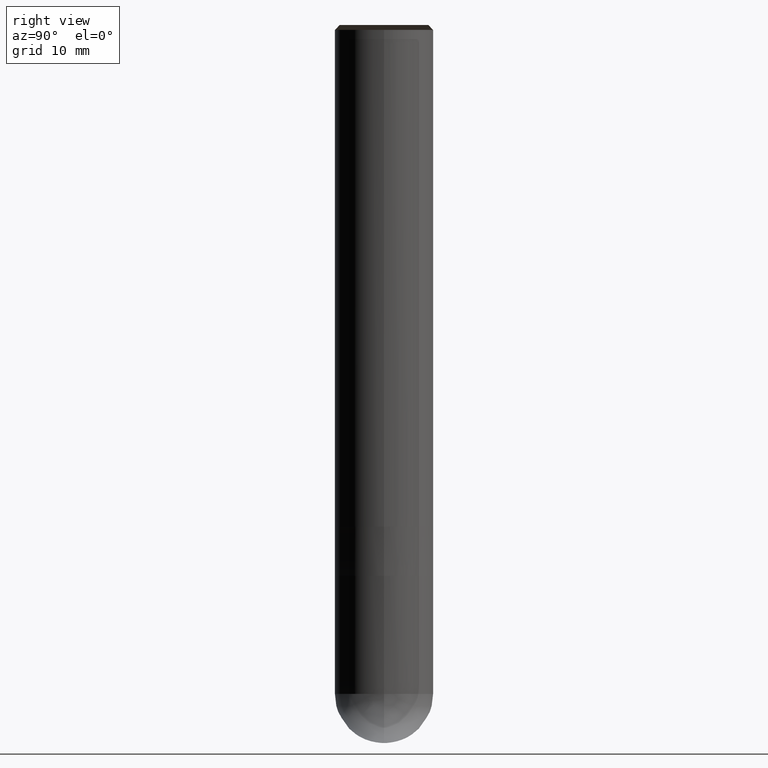
[diagram: clean part render]
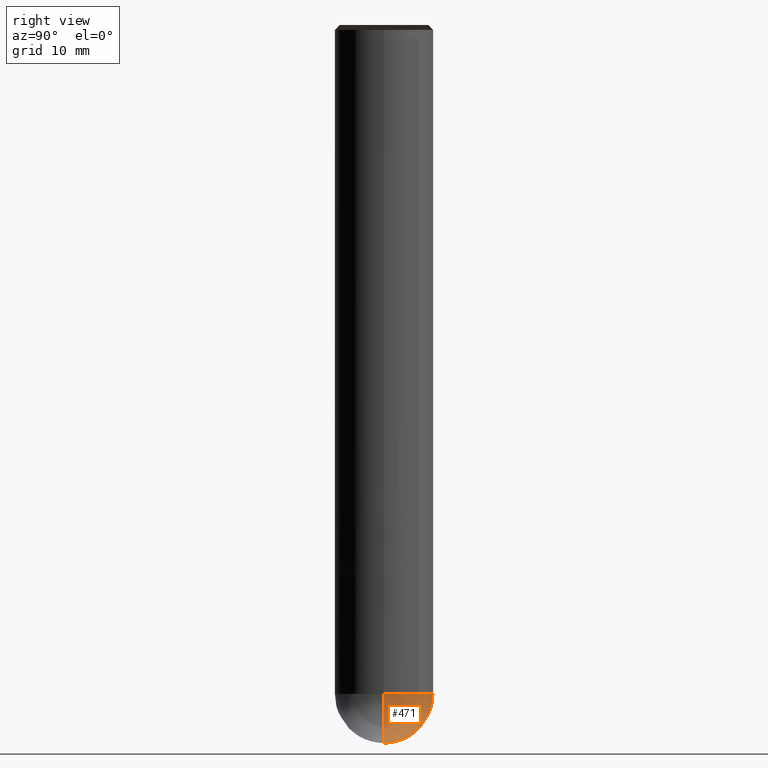
[diagram: same view with one face highlighted and labeled with its STEP entity id]
A machine part, right view. The second image highlights one B-rep face of the part: STEP entity #471.
In plain terms, the highlighted face is a freeform B-spline surface patch.
Its self-contained STEP definition (entity closure, byte-faithful):
#400=CARTESIAN_POINT('',(0.0,0.0,-22.0));
#401=CARTESIAN_POINT('',(5.0,0.0,-22.0));
#402=CARTESIAN_POINT('',(5.0,5.0,-22.0));
#403=CARTESIAN_POINT('',(0.0,5.0,-22.0));
#404=CARTESIAN_POINT('',(-5.0,5.0,-22.0));
#405=CARTESIAN_POINT('',(-5.0,0.0,-22.0));
#406=CARTESIAN_POINT('',(5.0,0.0,-17.0));
#407=CARTESIAN_POINT('',(5.0,5.0,-17.0));
#408=CARTESIAN_POINT('',(0.0,5.0,-17.0));
#409=CARTESIAN_POINT('',(-5.0,5.0,-17.0));
#410=CARTESIAN_POINT('',(-5.0,0.0,-17.0));
#456=(
BOUNDED_SURFACE()
B_SPLINE_SURFACE(2,2,(
(#400,#400,#400,#400,#400),
(#401,#402,#403,#404,#405),
(#406,#407,#408,#409,#410)
), .UNSPECIFIED.,.F.,.F.,.F.)
B_SPLINE_SURFACE_WITH_KNOTS((3,3),(3,2,3),(
0.0,1.0),(
0.0,0.5,1.0), .UNSPECIFIED.)
GEOMETRIC_REPRESENTATION_ITEM()
RATIONAL_B_SPLINE_SURFACE(((1.0,0.707106781187,1.0,0.707106781187,1.0),
(0.707106781187,0.5,0.707106781187,0.5,0.707106781187),
(1.0,0.707106781187,1.0,0.707106781187,1.0)
))
REPRESENTATION_ITEM('')
SURFACE()
);
#457=(
BOUNDED_CURVE()
B_SPLINE_CURVE(2,(#410,#405,#400),.UNSPECIFIED.,.F.,.F.)
B_SPLINE_CURVE_WITH_KNOTS((3,3),
(0.0,1.0),.UNSPECIFIED.)
CURVE()
GEOMETRIC_REPRESENTATION_ITEM()
RATIONAL_B_SPLINE_CURVE((1.0,0.707106781187,1.0))
REPRESENTATION_ITEM('')
);
#458=(
BOUNDED_CURVE()
B_SPLINE_CURVE(2,(#400,#401,#406),.UNSPECIFIED.,.F.,.F.)
B_SPLINE_CURVE_WITH_KNOTS((3,3),
(0.0,1.0),.UNSPECIFIED.)
CURVE()
GEOMETRIC_REPRESENTATION_ITEM()
RATIONAL_B_SPLINE_CURVE((1.0,0.707106781187,1.0))
REPRESENTATION_ITEM('')
);
#459=(
BOUNDED_CURVE()
B_SPLINE_CURVE(2,(#406,#407,#408,#409,#410),.UNSPECIFIED.,.F.,.F.)
B_SPLINE_CURVE_WITH_KNOTS((3,2,3),
(0.0,0.5,1.0),.UNSPECIFIED.)
CURVE()
GEOMETRIC_REPRESENTATION_ITEM()
RATIONAL_B_SPLINE_CURVE((1.0,0.707106781187,1.0,0.707106781187,1.0))
REPRESENTATION_ITEM('')
);
#460=VERTEX_POINT('',#400);
#461=VERTEX_POINT('',#406);
#462=VERTEX_POINT('',#410);
#463=EDGE_CURVE('',#462,#460,#457,.T.);
#464=EDGE_CURVE('',#460,#461,#458,.T.);
#465=EDGE_CURVE('',#461,#462,#459,.T.);
#466=ORIENTED_EDGE('',*,*,#463,.T.);
#467=ORIENTED_EDGE('',*,*,#464,.T.);
#468=ORIENTED_EDGE('',*,*,#465,.T.);
#469=EDGE_LOOP('',(#466,#467,#468));
#470=FACE_OUTER_BOUND('',#469,.T.);
#471=ADVANCED_FACE('',(#470),#456,.T.);